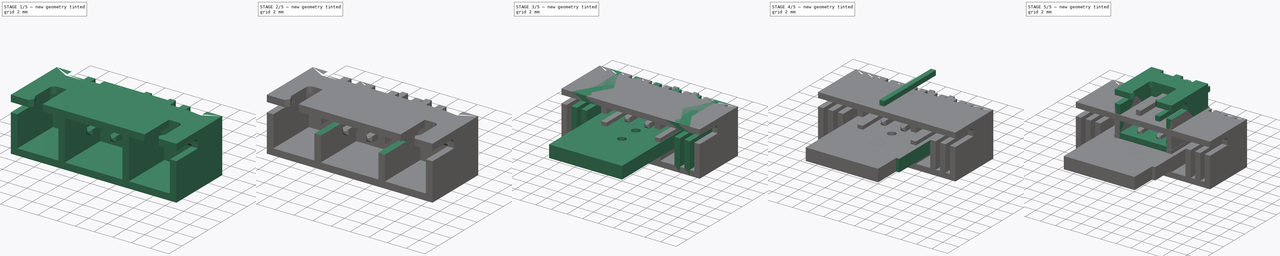
[diagram: build sequence overview — one tinted view per stage of 5, left to right]
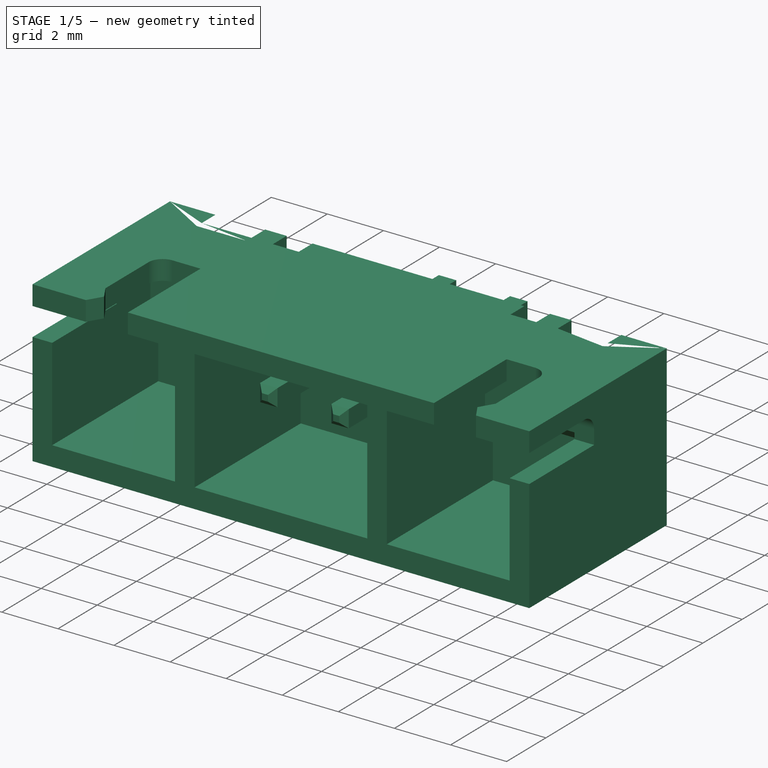
[diagram: stage 1 of 5 — iso view after this stage's code; geometry added in this stage tinted green]
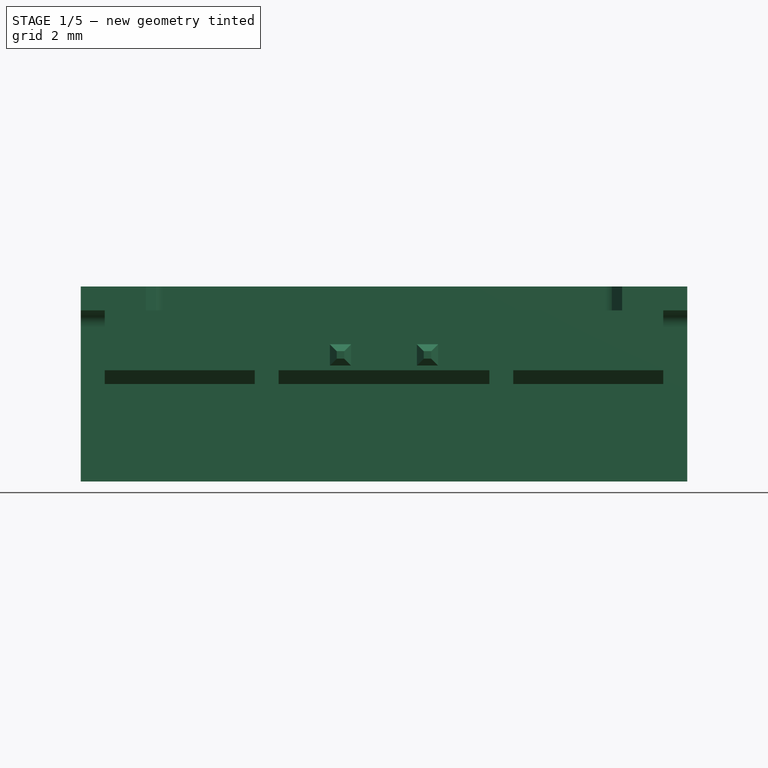
[diagram: stage 1 of 5 — front view after this stage's code; geometry added in this stage tinted green]
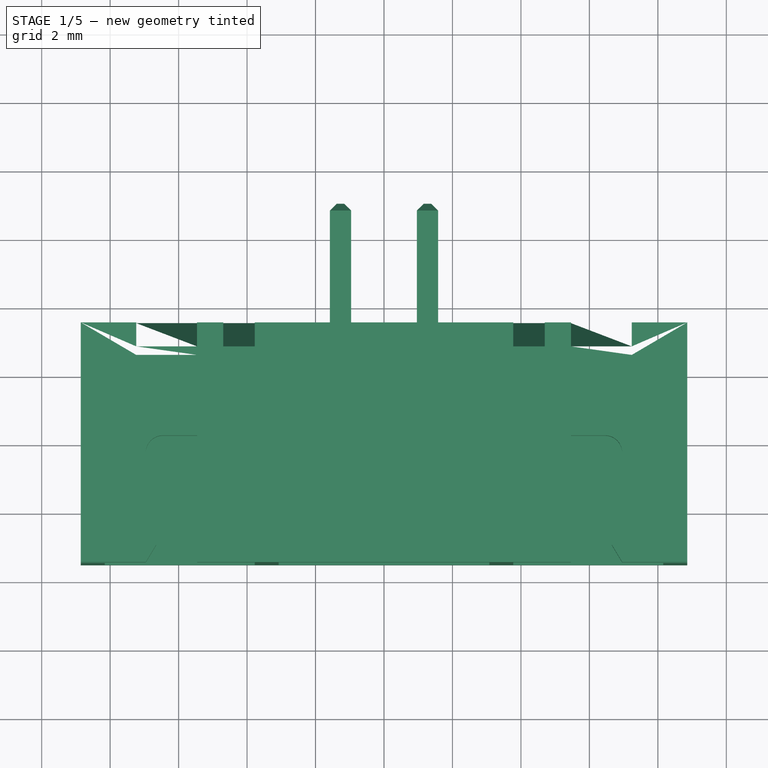
[diagram: stage 1 of 5 — top view after this stage's code; geometry added in this stage tinted green]
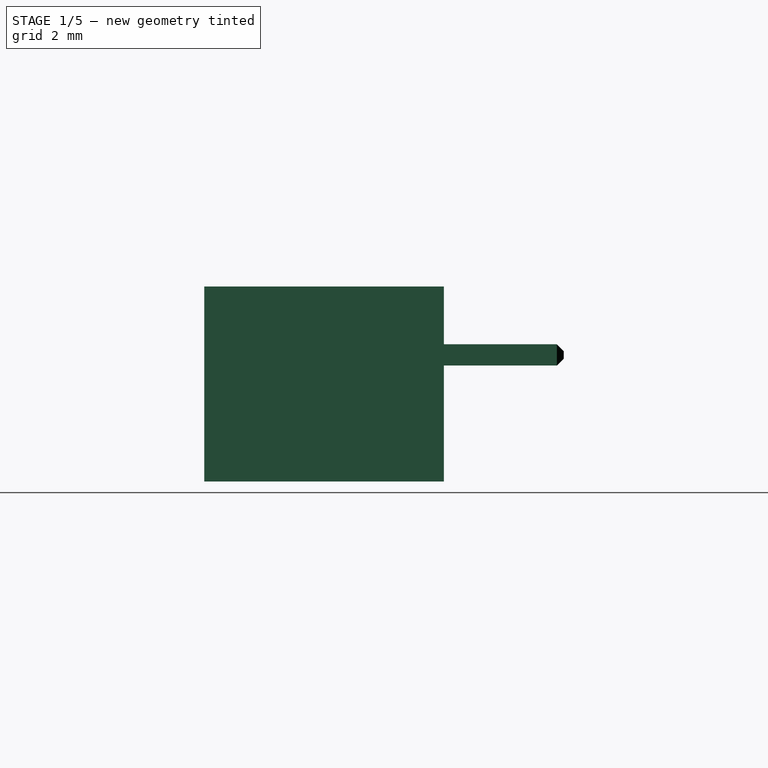
[diagram: stage 1 of 5 — right view after this stage's code; geometry added in this stage tinted green]
FCSTD DOCUMENT  (FreeCAD 0.18R16093 (Git))
Label: izokee-2pin-socket
License: CreativeCommons Attribution
LicenseURL: http://creativecommons.org/licenses/by/4.0/
objects: Part::FeaturePython×17, Sketcher::SketchObject×15, App::DocumentObjectGroup×11, PartDesign::Pad×8, PartDesign::ShapeBinder×8, Part::Feature×8, PartDesign::Pocket×7, Part::MultiFuse×7, PartDesign::Body×5, PartDesign::Plane×2, PartDesign::Thickness×1, Part::Compound×1, Spreadsheet::Sheet×1, Part::Cut×1, Part::Box×1, Part::Chamfer×1, App::Part×1
note: 97 computed .brp shape members not serialized (recipe doc carries the construction recipe); baked Part::Feature solids carry a one-line shape summary decoded from their .brp

FEATURE [App::DocumentObjectGroup] Socket_izokee_1x02_P2_54mm_Vertical_fp
  Group = -> [FCrtYd_lines,FFab_lines,Filk_lines,TopPads,BotPads,THPs,newPCB]
FEATURE [Part::Feature] Shape001  label="Socket_izokee_1x02_P2_54mm_Vertical"
  shape: bbox 5.752 x 7.502 x 10.3 mm, 62 faces, 3 solids (baked)
FEATURE [App::DocumentObjectGroup] Group002  label="2-Pin"
  Group = -> [Body,Body001,Array]
FEATURE [Spreadsheet::Sheet] Spreadsheet  label="Measurements"
  cells = A1=PinCount; B1(PinCount)=2; D1=valid: 2 to 6 (2 pin has different top cutout); D2==(BodyOuterWidth - 2 * TopCutoutEdgeDistance) / 2; A3=WallWidth; B3(WallWidth)==0.7mm; A4=PinLength; B4(PinLength)==9.5mm; A5=BodyOuterHeight; B5(BodyOuterHeight)==5.7mm; A6=BodyOuterDepth; B6(BodyOuterDepth)==7mm; A7=BackSeparatorWidth; B7(BackSeparatorWidth)==0.765mm; D7==BackSeparatorWidth + BackWedgeInnerWidth; A8=BackWedgeInnerWidth; B8(BackWedgeInnerWidth)==1.775mm; A9=SideCutoutDepth; B9(SideCutoutDepth)==3.3mm; A10=SideCutoutHeight; B10(SideCutoutHeight)==1mm; A11=PinChamferLength; B11(PinChamferLength)==0.55mm; A12=BackWedgeLowerDepth; B12(BackWedgeLowerDepth)==0.95mm; A13=BackWedgeUpperDepth; B13(BackWedgeUpperDepth)==0.7mm; A14=PinWidth; B14(PinWidth)==0.62mm; A15=TopCutoutWidth; B15(TopCutoutWidth)==PinCount > 2 ? 1.5mm : TopCutoutWidth2Pin; C15(TopCutoutWidth2Pin)==(BodyOuterWidth - 2 * TopCutoutEdgeDistance) / 2; D15=helper value for 2 pin cutout. do not change.; A16=TopCutoutDepth; B16(TopCutoutDepth)==3.7mm; A17=TopCutoutLockDepth; B17(TopCutoutLockDepth)==1mm; A18=TopCutoutLockWidth; B18(TopCutoutLockWidth)==0.3mm; D18=1.2; A19=BodyOuterWidth; B19(BodyOuterWidth)==2 * BackWedgeEdgeDistance + PinCount * BackWedgeInnerWidth + (PinCount - 1) * BackSeparatorWidth; D19==BodyOuterWidth - 2 * (TopCutoutEdgeDistance + TopCutoutWidth); A20=InnerDepthTop; B20(InnerDepthTop)==5mm; A21=InnerDepthBottom; B21(InnerDepthBottom)==5.4mm; A22=TopCutoutEdgeDistance; B22(TopCutoutEdgeDistance)==1.9mm; A23=BackWallStrengthenerHeight; B23(BackWallStrengthenerHeight)==(BodyOuterHeight - 2 * WallWidth) / 2; A24=BackWedgeEdgeDistance; B24(BackWedgeEdgeDistance)==1.62mm; A25=BackWedgePinAreaHeight; B25(BackWedgePinAreaHeight)==1.5mm; A26=BackWedgeUpperDistance; B26(BackWedgeUpperDistance)==1.25mm; A27=PinOffsetFromFrontPlane; B27(PinOffsetFromFrontPlane)==1mm
FEATURE [Sketcher::SketchObject] Sketch011  label="CasingTopViewSketch"
  MapMode = 5
  Support = -> [XY_Plane002]
  expr: Constraints[9] = Measurements.BodyOuterDepth
  expr: Constraints.BodyOuterWidth = Measurements.BodyOuterWidth
  sketch-geometry (4):
    g0: LineSegment StartX=-3.7775 StartY=-3.5 StartZ=0 EndX=3.7775 EndY=-3.5 EndZ=0
    g1: LineSegment StartX=3.7775 StartY=-3.5 StartZ=0 EndX=3.7775 EndY=3.5 EndZ=0
    g2: LineSegment StartX=3.7775 StartY=3.5 StartZ=0 EndX=-3.7775 EndY=3.5 EndZ=0
    g3: LineSegment StartX=-3.7775 StartY=3.5 StartZ=0 EndX=-3.7775 EndY=-3.5 EndZ=0
  constraints (11):
    c: Coincident(g0,g1)
    c: Coincident(g1,g2)
    c: Coincident(g2,g3)
    c: Coincident(g3,g0)
    c: Horizontal(g0)
    c: Horizontal(g2)
    c: Vertical(g1)
    c: Vertical(g3)
    c: Distance(g2) = 7.555  'BodyOuterWidth'
    c: DistanceY(g3,g3) = 7
    c: Symmetric(g0,g1,g-1)
FEATURE [PartDesign::Pad] Pad007  label="CasingPad"
  Length = 5.7
  Length2 = 100
  Midplane = true
  Profile = -> Sketch011
  Refine = true
  Type = 0
  expr: Length = Measurements.BodyOuterHeight
FEATURE [PartDesign::ShapeBinder] ShapeBinder002  label="CasingFrontFace"
  Support = -> [Pad007]
  TraceSupport = false
FEATURE [Sketcher::SketchObject] Sketch015  label="FrontCutoutSketch"
  ExternalGeometry = -> [ShapeBinder002]
  MapMode = 5
  Placement = pos=(0,-3.5,0) rot=(1,0,0;1.5708rad)
  Support = -> [ShapeBinder002]
  expr: Constraints[9] = Measurements.WallWidth
  expr: Constraints[8] = Measurements.WallWidth
  sketch-geometry (4):
    g0: LineSegment StartX=-3.0775 StartY=2.15 StartZ=0 EndX=3.0775 EndY=2.15 EndZ=0
    g1: LineSegment StartX=3.0775 StartY=2.15 StartZ=0 EndX=3.0775 EndY=-2.15 EndZ=0
    g2: LineSegment StartX=3.0775 StartY=-2.15 StartZ=0 EndX=-3.0775 EndY=-2.15 EndZ=0
    g3: LineSegment StartX=-3.0775 StartY=-2.15 StartZ=0 EndX=-3.0775 EndY=2.15 EndZ=0
  constraints (11):
    c: Coincident(g0,g1)
    c: Coincident(g1,g2)
    c: Coincident(g2,g3)
    c: Coincident(g3,g0)
    c: Horizontal(g0)
    c: Horizontal(g2)
    c: Vertical(g1)
    c: Vertical(g3)
    c: DistanceX(g-3,g0) = 0.7
    c: DistanceY(g0,g-3) = 0.7
    c: Symmetric(g0,g1,g-1)
FEATURE [PartDesign::Pocket] Pocket006  label="FrontCutout"
  BaseFeature = -> Pad007
  Length = 5.4
  Length2 = 100
  Profile = -> Sketch015
  Refine = true
  Type = 0
  expr: Length = Measurements.InnerDepthBottom
FEATURE [PartDesign::Body] Body002  label="Casing3pin"
  Group = -> [Sketch011,Pad007,ShapeBinder002,Pocket006,ShapeBinder003,Sketch015,MirroredSketch,Pocket007,MirroredSketch001,Pocket008,ShapeBinder004,Sketch016,Pocket009,ShapeBinder005,Sketch017,Pad008]
  Origin = -> Origin002
  Tip = -> Pad008
FEATURE [PartDesign::Body] Body003  label="BackWedgeCutout"
  Origin = -> Origin004
FEATURE [PartDesign::ShapeBinder] CopyShapeBinder003
  Placement = pos=(0,0,2.85) rot=(0,0,1;0rad)
  TraceSupport = false
FEATURE [PartDesign::Plane] DatumPlane001
  Length = 31.2
  MapMode = 5
  Placement = pos=(0,0,2.85) rot=(0,0,1;0rad)
  ResizeMode = 0
  Support = -> [CopyShapeBinder003]
  Width = 31.2
FEATURE [Sketcher::SketchObject] Sketch018
  MapMode = 5
  Placement = pos=(0,0,2.85) rot=(0,0,1;0rad)
  Support = -> [DatumPlane001]
  expr: Constraints[21] = Measurements.BackWedgeEdgeDistance
  expr: Constraints[20] = Measurements.BackWedgeInnerWidth
  expr: Constraints[10] = Measurements.BodyOuterDepth
  expr: Constraints[22] = max(Measurements.BackWedgeLowerDepth; Measurements.BackWedgeUpperDepth)
  expr: Constraints[9] = Measurements.BodyOuterWidth
  sketch-geometry (8):
    g0: LineSegment [constr] StartX=-3.7775 StartY=3.5 StartZ=0 EndX=3.7775 EndY=3.5 EndZ=0
    g1: LineSegment [constr] StartX=3.7775 StartY=3.5 StartZ=0 EndX=3.7775 EndY=-3.5 EndZ=0
    g2: LineSegment [constr] StartX=3.7775 StartY=-3.5 StartZ=0 EndX=-3.7775 EndY=-3.5 EndZ=0
    g3: LineSegment [constr] StartX=-3.7775 StartY=-3.5 StartZ=0 EndX=-3.7775 EndY=3.5 EndZ=0
    g4: LineSegment StartX=-2.1575 StartY=3.5 StartZ=0 EndX=-0.3825 EndY=3.5 EndZ=0
    g5: LineSegment StartX=-0.3825 StartY=3.5 StartZ=0 EndX=-0.3825 EndY=2.55 EndZ=0
    g6: LineSegment StartX=-0.3825 StartY=2.55 StartZ=0 EndX=-2.1575 EndY=2.55 EndZ=0
    g7: LineSegment StartX=-2.1575 StartY=2.55 StartZ=0 EndX=-2.1575 EndY=3.5 EndZ=0
  constraints (23):
    c: Coincident(g0,g1)
    c: Coincident(g1,g2)
    c: Coincident(g2,g3)
    c: Coincident(g3,g0)
    c: Horizontal(g0)
    c: Horizontal(g2)
    c: Vertical(g1)
    c: Vertical(g3)
    c: Symmetric(g0,g2,g-1)
    c: DistanceX(g0,g0) = 7.555
    c: DistanceY(g3,g3) = 7
    c: Coincident(g4,g5)
    c: Coincident(g5,g6)
    c: Coincident(g6,g7)
    c: Coincident(g7,g4)
    c: Horizontal(g4)
    c: Horizontal(g6)
    c: Vertical(g5)
    c: Vertical(g7)
    c: PointOnObject(g4,g0)
    c: DistanceX(g4,g4) = 1.775
    c: DistanceX(g0,g4) = 1.62
    c: DistanceY(g7,g7) = 0.95
FEATURE [PartDesign::Pad] Pad009  label="BackWedgeLeftMostCutoutPad"
  Length = 5.7
  Length2 = 100
  Placement = pos=(0,0,2.85) rot=(0,0,1;0rad)
  Profile = -> Sketch018
  Reversed = true
  Type = 0
  expr: Length = Measurements.BodyOuterHeight
FEATURE [Part::FeaturePython] Array001  label="BackWedgeCutouts"  # Draft array (typed FeaturePython)
  Angle = 360
  ArrayType = 0
  Axis = (0,0,1)
  Base = -> Pad009
  Center = (0,0,0)
  Fuse = false
  IntervalAxis = (0,0,0)
  IntervalX = (2.54,0,0)
  IntervalY = (0,1,0)
  IntervalZ = (0,0,1)
  NumberPolar = 1
  NumberX = 2
  NumberY = 1
  NumberZ = 1
  expr: NumberX = Measurements.PinCount
  expr: IntervalX.x = Measurements.BackWedgeInnerWidth + Measurements.BackSeparatorWidth
FEATURE [PartDesign::Body] Body004  label="BackWedge"
  Group = -> [ShapeBinder006,Sketch019,Pad010]
  Origin = -> Origin005
  Tip = -> Pad010
FEATURE [Part::Box] Box  label="LeftMostPin"
  AttacherType = Attacher::AttachEngine3D
  Height = 0.62
  Length = 0.62
  Placement = pos=(-1.58,-2.5,0.54) rot=(0,0,1;0rad)
  Width = 9.5
  expr: Placement.Base.y = -Measurements.BodyOuterDepth / 2 + Measurements.PinOffsetFromFrontPlane
  expr: Placement.Base.x = -Measurements.BodyOuterWidth / 2 + Measurements.BackWedgeEdgeDistance + Measurements.BackWedgeInnerWidth / 2 - Measurements.PinWidth / 2
  expr: Placement.Base.z = +Measurements.BodyOuterHeight / 2 - Measurements.BackWedgeUpperDistance - Measurements.BackWedgePinAreaHeight / 2 - Measurements.PinWidth / 2
  expr: Height = Measurements.PinWidth
  expr: Width = Measurements.PinLength
  expr: Length = Measurements.PinWidth
FEATURE [Part::Chamfer] Chamfer  label="PinChamfer"
  Base = -> Box
  Edges = 8 edges r=0.2: [Edge1,Edge3,Edge5,Edge7,Edge9,Edge10,Edge11,Edge12]
FEATURE [Part::FeaturePython] Array002  label="MetalPinsArray"  # Draft array (typed FeaturePython)
  Angle = 360
  ArrayType = 0
  Axis = (0,0,1)
  Base = -> Chamfer
  Center = (0,0,0)
  Fuse = false
  IntervalAxis = (0,0,0)
  IntervalX = (2.54,0,0)
  IntervalY = (0,1,0)
  IntervalZ = (0,0,1)
  NumberPolar = 1
  NumberX = 2
  NumberY = 1
  NumberZ = 1
  expr: IntervalX.x = Measurements.BackWedgeInnerWidth + Measurements.BackSeparatorWidth
  expr: NumberX = Measurements.PinCount
FEATURE [Part::Feature] BackWedgePad_fd_cp002  label="BackWedgePad_sp002"
  shape: bbox 17.72 x 7 x 5.7 mm, 115 faces (baked)
FEATURE [Part::MultiFuse] BackWedgePad_sp002_mp_cp  label="Socket_izokee_1x06_P2_54mm_Vertical_sp_fd"
  Shapes = -> [BackWedgePad_fd_cp002,Array002]
FEATURE [Part::Feature] Shape006  label="Socket_izokee_1x06_P2_54mm_Vertical_sp"
  shape: bbox 17.72 x 10.5 x 5.7 mm, 223 faces (baked)
FEATURE [App::DocumentObjectGroup] Group008  label="6pin"
  Group = -> [BackWedgePad_mp_cp003,BackWedgePad_sp002_mp_cp,Shape006]
FEATURE [App::DocumentObjectGroup] Group001  label="KiCAD Helpers"
  Group = -> [Group004,Group005,Group006,Group007,Group008]
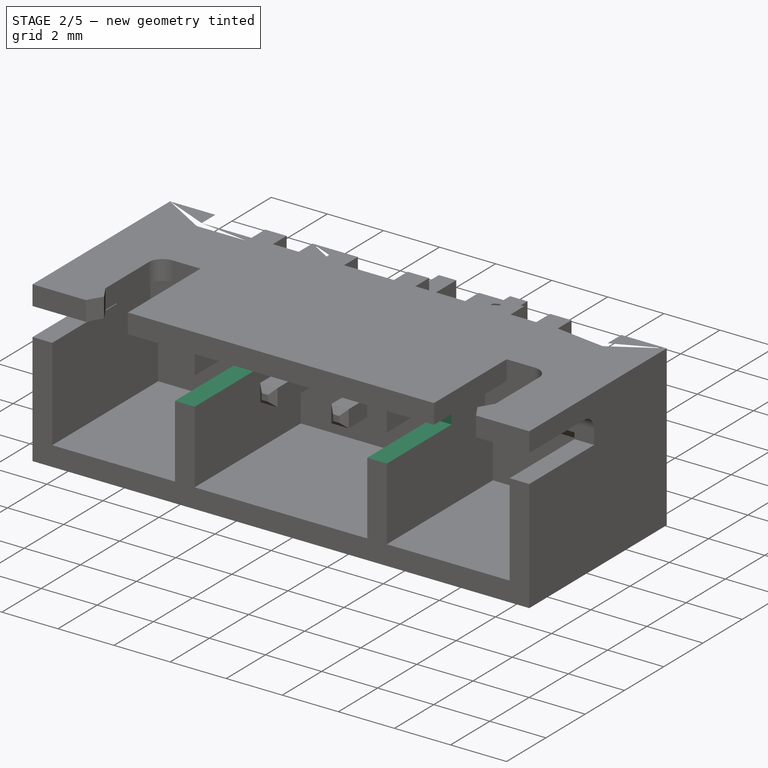
[diagram: stage 2 of 5 — iso view after this stage's code; geometry added in this stage tinted green]
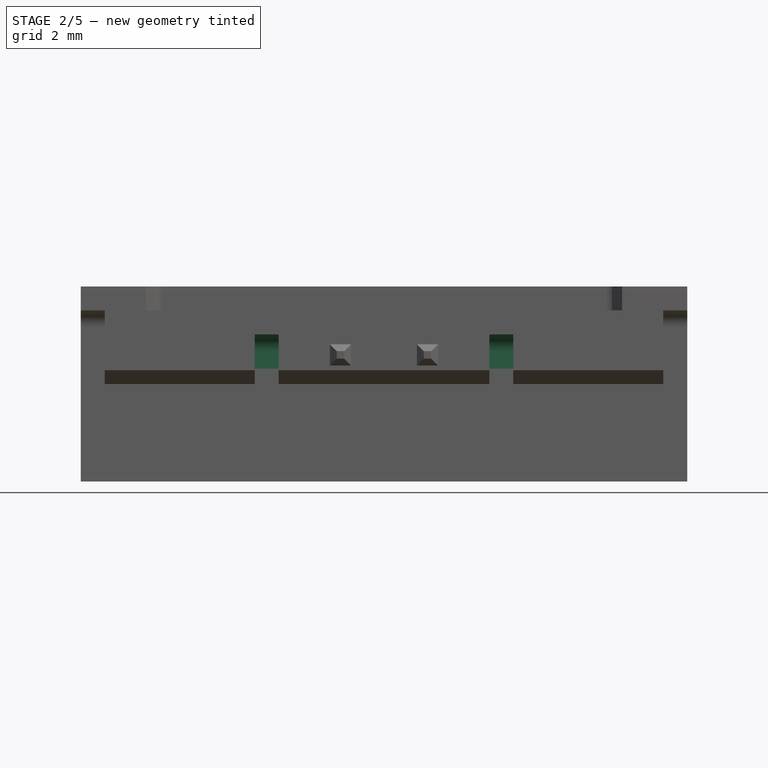
[diagram: stage 2 of 5 — front view after this stage's code; geometry added in this stage tinted green]
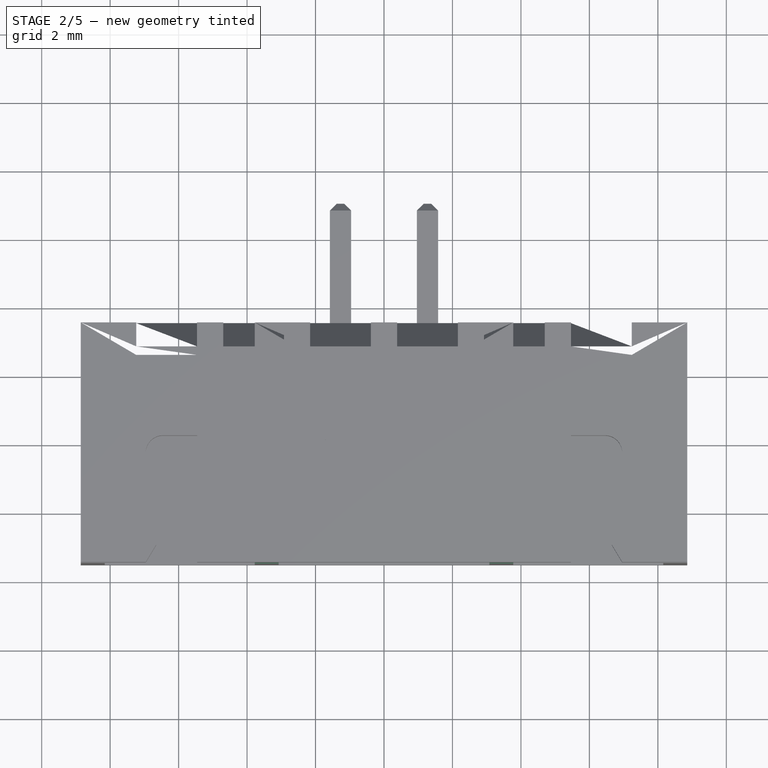
[diagram: stage 2 of 5 — top view after this stage's code; geometry added in this stage tinted green]
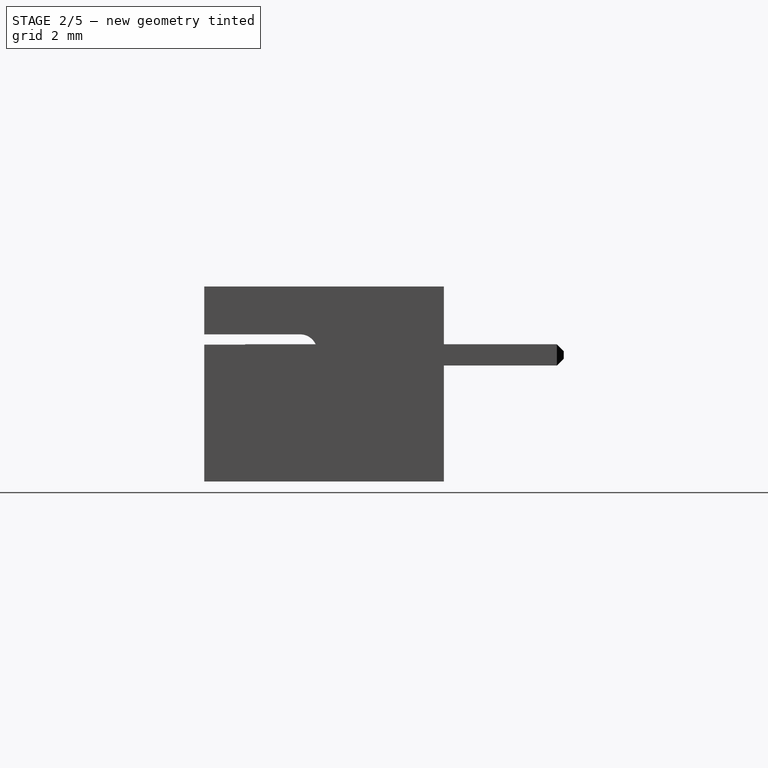
[diagram: stage 2 of 5 — right view after this stage's code; geometry added in this stage tinted green]
FEATURE [PartDesign::ShapeBinder] ShapeBinder003  label="CasingTopFace"
  Placement = pos=(0,0,2.85) rot=(0,0,1;0rad)
  Support = -> [Pocket006]
  TraceSupport = false
FEATURE [Sketcher::SketchObject] MirroredSketch  label="TopCutoutRightSketch"
  ExternalGeometry = -> [ShapeBinder003]
  MapMode = 5
  Placement = pos=(0,0,2.85) rot=(0,0,1;0rad)
  Support = -> [ShapeBinder003]
  expr: Constraints[21] = Measurements.TopCutoutLockWidth
  expr: Constraints[20] = Measurements.TopCutoutLockDepth
  expr: Constraints[17] = Measurements.TopCutoutLockDepth / 2
  expr: Constraints[9] = Measurements.TopCutoutWidth
  expr: Constraints[8] = Measurements.TopCutoutDepth
  expr: Constraints[7] = Measurements.TopCutoutEdgeDistance
  sketch-geometry (7):
    g0: LineSegment StartX=1.3775 StartY=0.2 StartZ=0 EndX=0 EndY=0.2 EndZ=0
    g1: LineSegment StartX=0 StartY=0.2 StartZ=0 EndX=0 EndY=-3.5 EndZ=0
    g2: LineSegment StartX=0 StartY=-3.5 StartZ=0 EndX=1.8775 EndY=-3.5 EndZ=0
    g3: LineSegment StartX=1.8775 StartY=-2.5 StartZ=0 EndX=1.8775 EndY=-0.3 EndZ=0
    g4: ArcOfCircle CenterX=1.3775 CenterY=-0.3 CenterZ=0 NormalX=0 NormalY=0 NormalZ=1 AngleXU=0 Radius=0.5 StartAngle=0 EndAngle=1.5708
    g5: LineSegment StartX=1.8775 StartY=-2.5 StartZ=0 EndX=1.5775 EndY=-3 EndZ=0
    g6: LineSegment StartX=1.5775 StartY=-3 StartZ=0 EndX=1.8775 EndY=-3.5 EndZ=0
  constraints (22):
    c: Coincident(g0,g1)
    c: Coincident(g1,g2)
    c: Horizontal(g2)
    c: Vertical(g1)
    c: Coincident(g4,g3)
    c: Radius(g4) = 0.5
    c: Vertical(g3)
    c: DistanceX(g2,g-3) = 1.9
    c: DistanceY(g1,g0) = 3.7
    c: DistanceX(g2,g2) = 1.8775
    c: Horizontal(g2,g-3)
    c: Horizontal(g3,g4)
    c: Coincident(g0,g4)
    c: Horizontal(g0)
    c: Vertical(g0,g4)
    c: Coincident(g5,g6)
    c: Coincident(g6,g2)
    c: DistanceY(g2,g5) = 0.5
    c: Coincident(g3,g5)
    c: Vertical(g3,g2)
    c: DistanceY(g2,g3) = 1
    c: DistanceX(g5,g2) = 0.3
FEATURE [PartDesign::Pocket] Pocket007  label="TopCutoutRight"
  BaseFeature = -> Pocket006
  Length = 5
  Length2 = 100
  Profile = -> MirroredSketch
  Refine = true
  Type = 2
FEATURE [Sketcher::SketchObject] MirroredSketch001  label="TopCutoutLeftSketch"
  ExternalGeometry = -> [ShapeBinder003]
  MapMode = 5
  Placement = pos=(0,0,2.85) rot=(0,0,1;0rad)
  Support = -> [ShapeBinder003]
  expr: Constraints[21] = Measurements.TopCutoutLockWidth
  expr: Constraints[15] = Measurements.TopCutoutLockDepth
  expr: Constraints[16] = Measurements.TopCutoutLockDepth / 2
  expr: Constraints[14] = Measurements.TopCutoutDepth
  expr: Constraints[13] = Measurements.TopCutoutWidth
  expr: Constraints[12] = Measurements.TopCutoutEdgeDistance
  sketch-geometry (7):
    g0: LineSegment StartX=-1.3775 StartY=0.2 StartZ=0 EndX=0 EndY=0.2 EndZ=0
    g1: LineSegment StartX=0 StartY=0.2 StartZ=0 EndX=0 EndY=-3.5 EndZ=0
    g2: LineSegment StartX=0 StartY=-3.5 StartZ=0 EndX=-1.8775 EndY=-3.5 EndZ=0
    g3: LineSegment StartX=-1.8775 StartY=-2.5 StartZ=0 EndX=-1.8775 EndY=-0.3 EndZ=0
    g4: ArcOfCircle CenterX=-1.3775 CenterY=-0.3 CenterZ=0 NormalX=0 NormalY=0 NormalZ=1 AngleXU=0 Radius=0.5 StartAngle=1.5708 EndAngle=3.14159
    g5: LineSegment StartX=-1.8775 StartY=-2.5 StartZ=0 EndX=-1.5775 EndY=-3 EndZ=0
    g6: LineSegment StartX=-1.5775 StartY=-3 StartZ=0 EndX=-1.8775 EndY=-3.5 EndZ=0
  constraints (22):
    c: Coincident(g0,g1)
    c: Coincident(g1,g2)
    c: Horizontal(g2)
    c: Vertical(g1)
    c: Coincident(g4,g3)
    c: Radius(g4) = 0.5
    c: Vertical(g3)
    c: Coincident(g0,g4)
    c: Horizontal(g0)
    c: Coincident(g5,g6)
    c: Coincident(g6,g2)
    c: Coincident(g3,g5)
    c: DistanceX(g-3,g2) = 1.9
    c: DistanceX(g2,g1) = 1.8775
    c: DistanceY(g1,g0) = 3.7
    c: DistanceY(g2,g3) = 1
    c: DistanceY(g2,g5) = 0.5
    c: Horizontal(g3,g4)
    c: Vertical(g0,g4)
    c: DistanceY(g-3,g2) = 0
    c: Vertical(g3,g2)
    c: DistanceX(g2,g5) = 0.3
FEATURE [PartDesign::Pocket] Pocket008  label="TopCutoutLeft"
  BaseFeature = -> Pocket007
  Length = 5
  Length2 = 100
  Profile = -> MirroredSketch001
  Refine = true
  Type = 2
FEATURE [PartDesign::ShapeBinder] ShapeBinder004  label="CasingLeftFace"
  Support = -> [Pocket008]
  TraceSupport = false
FEATURE [Sketcher::SketchObject] Sketch016  label="SideCutoutSketch"
  ExternalGeometry = -> [Pocket008]
  MapMode = 5
  Placement = pos=(-3.7775,0,0) rot=(0.57735,-0.57735,-0.57735;2.0944rad)
  Support = -> [ShapeBinder004]
  expr: Constraints[13] = Measurements.SideCutoutDepth
  expr: Constraints[9] = Measurements.SideCutoutHeight
  expr: Constraints[8] = Measurements.WallWidth
  sketch-geometry (5):
    g0: LineSegment StartX=3.5 StartY=1.45 StartZ=0 EndX=0.7 EndY=1.45 EndZ=0
    g1: LineSegment StartX=0.2 StartY=0.95 StartZ=0 EndX=0.2 EndY=0.45 EndZ=0
    g2: LineSegment StartX=0.2 StartY=0.45 StartZ=0 EndX=3.5 EndY=0.45 EndZ=0
    g3: LineSegment StartX=3.5 StartY=0.45 StartZ=0 EndX=3.5 EndY=1.45 EndZ=0
    g4: ArcOfCircle CenterX=0.7 CenterY=0.95 CenterZ=0 NormalX=0 NormalY=0 NormalZ=1 AngleXU=0 Radius=0.5 StartAngle=1.5708 EndAngle=3.14159
  constraints (14):
    c: Coincident(g1,g2)
    c: Coincident(g2,g3)
    c: Coincident(g3,g0)
    c: Horizontal(g0)
    c: Horizontal(g2)
    c: Vertical(g1)
    c: Vertical(g3)
    c: PointOnObject(g0,g-3)
    c: DistanceY(g0,g-4) = 0.7
    c: DistanceY(g2,g0) = 1
    c: Tangent(g0,g4) = -1.5708
    c: Tangent(g1,g4) = -1.5708
    c: Radius(g4) = 0.5
    c: DistanceX(g2,g2) = 3.3
FEATURE [PartDesign::Pocket] Pocket009  label="SideCutout"
  BaseFeature = -> Pocket008
  Length = 5
  Length2 = 100
  Profile = -> Sketch016
  Refine = true
  Type = 1
FEATURE [PartDesign::ShapeBinder] ShapeBinder005  label="InnerWallLeft"
  Support = -> [Pocket009]
  TraceSupport = false
FEATURE [Sketcher::SketchObject] Sketch017  label="BackWallStrengthenerWedgeSketch"
  ExternalGeometry = -> [Pocket009]
  MapMode = 5
  Placement = pos=(-3.0775,0,0) rot=(0.57735,0.57735,0.57735;2.0944rad)
  Support = -> [ShapeBinder005]
  expr: Constraints[9] = Measurements.InnerDepthBottom - Measurements.InnerDepthTop
  expr: Constraints[8] = Measurements.BackWallStrengthenerHeight
  sketch-geometry (4):
    g0: LineSegment StartX=1.5 StartY=2.15 StartZ=0 EndX=1.5 EndY=0.4 EndZ=0
    g1: LineSegment StartX=1.5 StartY=0.4 StartZ=0 EndX=1.9 EndY=-7e-16 EndZ=0
    g2: LineSegment StartX=1.9 StartY=-7e-16 StartZ=0 EndX=1.9 EndY=2.15 EndZ=0
    g3: LineSegment StartX=1.9 StartY=2.15 StartZ=0 EndX=1.5 EndY=2.15 EndZ=0
  constraints (11):
    c: PointOnObject(g0,g-4)
    c: Vertical(g0)
    c: Coincident(g0,g1)
    c: PointOnObject(g1,g-3)
    c: Coincident(g1,g2)
    c: Coincident(g2,g-4)
    c: Coincident(g2,g3)
    c: Coincident(g3,g0)
    c: DistanceY(g2,g2) = 2.15
    c: DistanceX(g3,g3) = 0.4
    c: Angle(g2,g1) = 0.785398
FEATURE [PartDesign::Pad] Pad008  label="BackWallStrengthenerWedge"
  BaseFeature = -> Pocket009
  Length = 10
  Length2 = 100
  Profile = -> Sketch017
  Refine = true
  Type = 2
FEATURE [Part::Cut] Cut  label="CasingMinusBackWedgeCutouts"
  Base = -> Body002
  Tool = -> Array001
FEATURE [PartDesign::ShapeBinder] ShapeBinder006  label="BackWedgeLeftMostInnerFace"
  Placement = pos=(0,0,2.85) rot=(0,0,1;0rad)
  Support = -> [Cut]
  TraceSupport = false
FEATURE [Sketcher::SketchObject] Sketch019  label="BackWedgeSketch"
  ExternalGeometry = -> [ShapeBinder006]
  MapMode = 5
  Placement = pos=(-2.1575,0,2.85) rot=(0.57735,0.57735,0.57735;2.0944rad)
  Support = -> [ShapeBinder006]
  expr: Constraints[15] = Measurements.BackWedgePinAreaHeight
  expr: Constraints[18] = Measurements.BackWedgeLowerDepth
  expr: Constraints[17] = Measurements.BackWedgeUpperDistance
  expr: Constraints[14] = Measurements.BackWedgeUpperDepth
  sketch-geometry (7):
    g0: LineSegment StartX=2.55 StartY=0 StartZ=0 EndX=2.8 EndY=0 EndZ=0
    g1: LineSegment StartX=2.8 StartY=0 StartZ=0 EndX=3.5 EndY=-1.25 EndZ=0
    g2: LineSegment StartX=3.5 StartY=-1.25 StartZ=0 EndX=3.5 EndY=-2.75 EndZ=0
    g3: LineSegment StartX=3.5 StartY=-2.75 StartZ=0 EndX=2.55 EndY=-5.7 EndZ=0
    g4: LineSegment [constr] StartX=3.5 StartY=-5.7 StartZ=0 EndX=2.55 EndY=-5.7 EndZ=0
    g5: LineSegment StartX=2.55 StartY=-5.7 StartZ=0 EndX=2.55 EndY=-5.7 EndZ=0
    g6: LineSegment StartX=2.55 StartY=-5.7 StartZ=0 EndX=2.55 EndY=0 EndZ=0
  constraints (19):
    c: Coincident(g-3,g0)
    c: PointOnObject(g0,g-1)
    c: Coincident(g0,g1)
    c: PointOnObject(g1,g-4)
    c: Coincident(g1,g2)
    c: PointOnObject(g2,g-4)
    c: Coincident(g2,g3)
    c: Coincident(g4,g-4)
    c: Coincident(g4,g-3)
    c: PointOnObject(g3,g4)
    c: Coincident(g3,g5)
    c: Coincident(g5,g4)
    c: Coincident(g5,g6)
    c: Coincident(g6,g0)
    c: DistanceX(g0,g-4) = 0.7
    c: DistanceY(g2,g2) = 1.5
    c: DistanceY(g-4,g-4) = 5.7
    c: DistanceY(g1,g-4) = 1.25
    c: DistanceX(g3,g4) = 0.95
FEATURE [PartDesign::Pad] Pad010  label="BackWedgePad"
  Length = 4.315
  Length2 = 100
  Placement = pos=(0,0,2.85) rot=(0,0,1;0rad)
  Profile = -> Sketch019
  Type = 0
  expr: Length = Measurements.PinCount * Measurements.BackWedgeInnerWidth + (Measurements.PinCount - 1) * Measurements.BackSeparatorWidth
FEATURE [Part::Feature] Shape004  label="Socket_izokee_1x05_P2_54mm_Vertical_sp"
  shape: bbox 15.18 x 10.5 x 5.7 mm, 191 faces (baked)
FEATURE [App::DocumentObjectGroup] Group007  label="5pin"
  Group = -> [BackWedgePad_mp_cp002,MetalPinsArray_mp_cp,Shape004]
FEATURE [Part::MultiFuse] BackWedgePad_mp_cp003  label="Socket_izokee_1x06_P2_54mm_Vertical_fd"
  Shapes = -> [Pad010,Cut]
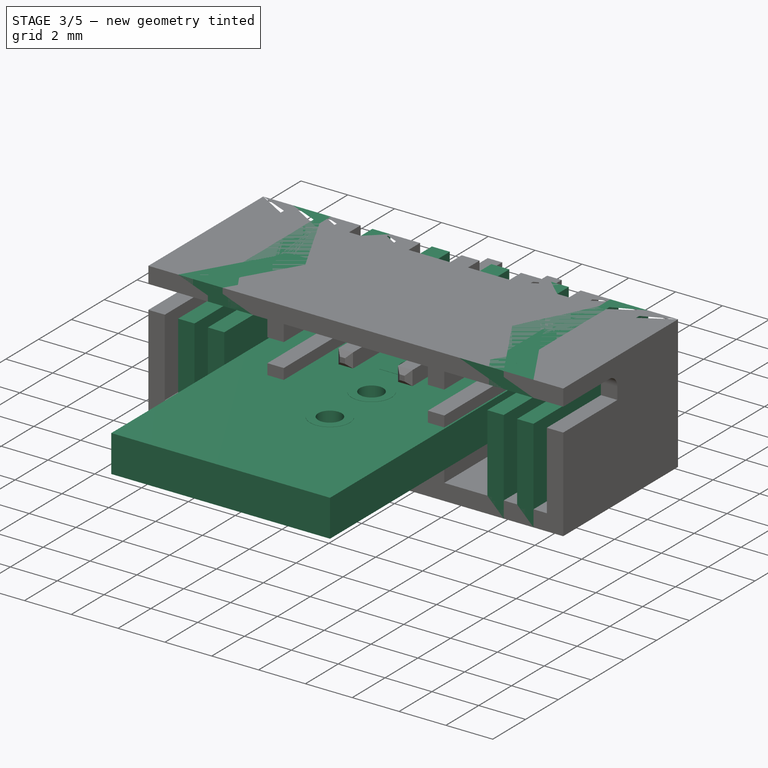
[diagram: stage 3 of 5 — iso view after this stage's code; geometry added in this stage tinted green]
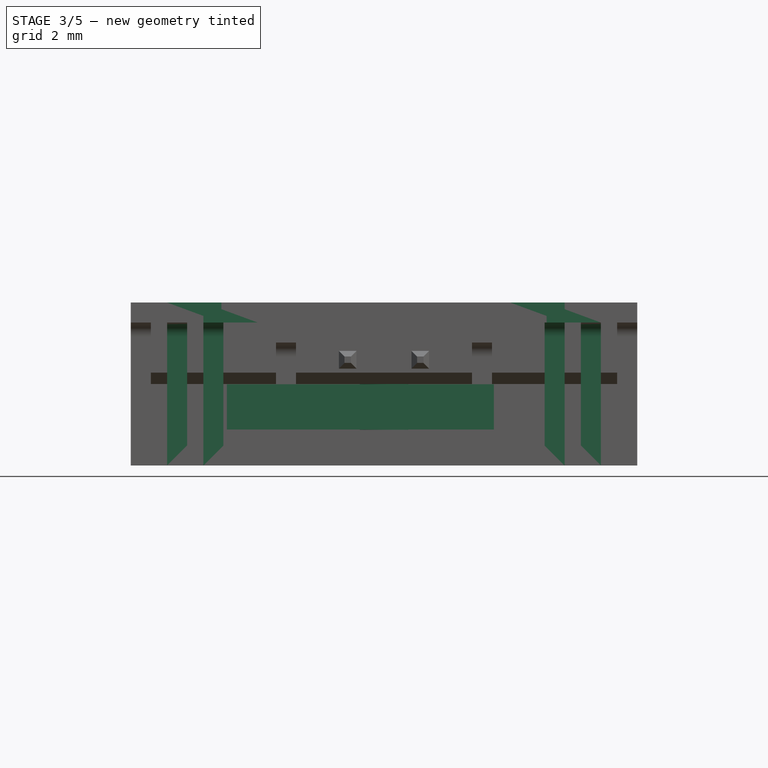
[diagram: stage 3 of 5 — front view after this stage's code; geometry added in this stage tinted green]
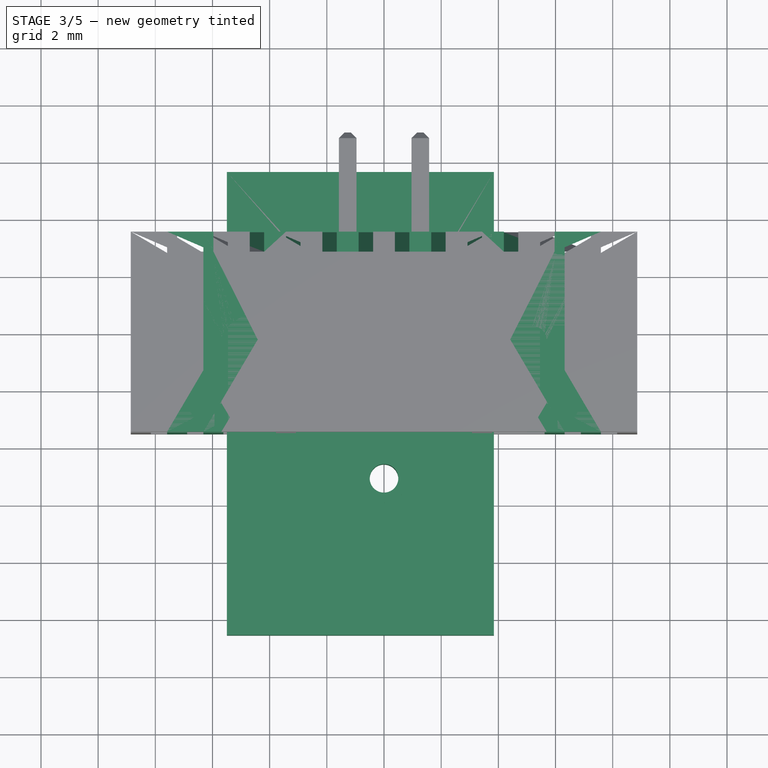
[diagram: stage 3 of 5 — top view after this stage's code; geometry added in this stage tinted green]
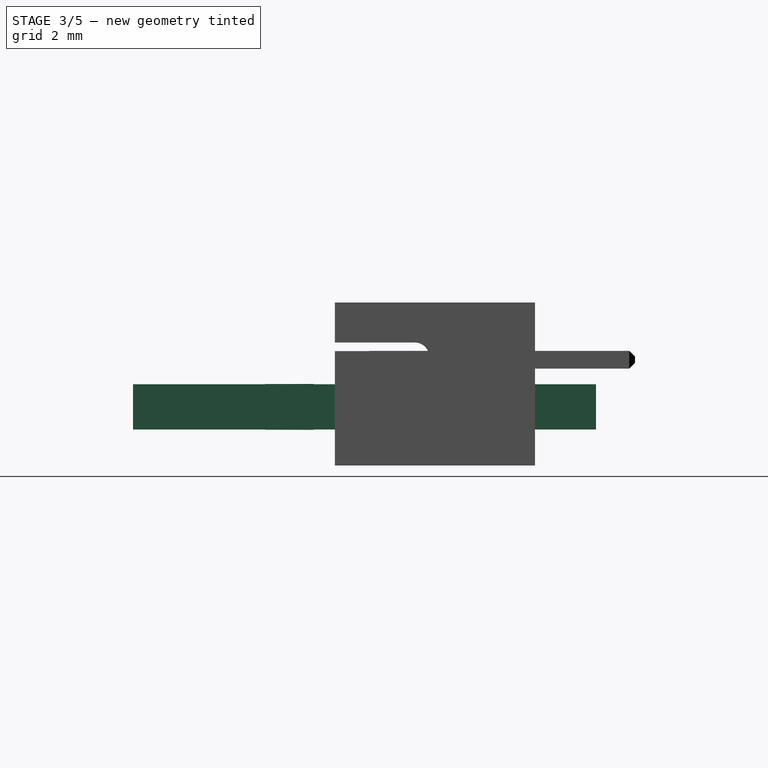
[diagram: stage 3 of 5 — right view after this stage's code; geometry added in this stage tinted green]
FEATURE [Part::Feature] Shape  label="Socket_izokee_1x03_P2_54mm_Vertical_fp_sp"
  shape: bbox 5.7 x 10.1 x 10.5 mm, 127 faces (baked)
FEATURE [Part::FeaturePython] FCrtYd_lines001  label="FCrtYd002"  # a2plus imported part (geometry in sourceFile) (typed FeaturePython)
  fixedPosition = true
FEATURE [Part::FeaturePython] FFab_lines002  label="FFab002"  # a2plus imported part (geometry in sourceFile) (typed FeaturePython)
  fixedPosition = true
FEATURE [Part::FeaturePython] Filk_lines002  label="FrontSilk002"  # a2plus imported part (geometry in sourceFile) (typed FeaturePython)
  fixedPosition = true
FEATURE [Part::FeaturePython] TopPads002  # a2plus imported part (geometry in sourceFile) (typed FeaturePython)
  fixedPosition = true
FEATURE [Part::FeaturePython] BotPads002  # a2plus imported part (geometry in sourceFile) (typed FeaturePython)
  fixedPosition = true
FEATURE [Part::FeaturePython] THPs002  label="PTHs002"  # a2plus imported part (geometry in sourceFile) (typed FeaturePython)
  fixedPosition = true
FEATURE [Part::FeaturePython] newPCB002  label="Pcb002"  # a2plus imported part (geometry in sourceFile) (typed FeaturePython)
  fixedPosition = true
FEATURE [App::DocumentObjectGroup] Socket_izokee_1x03_P2_54mm_Vertical_fp001
  Group = -> [FCrtYd_lines001,FFab_lines002,Filk_lines002,TopPads002,BotPads002,THPs002,newPCB002]
FEATURE [App::DocumentObjectGroup] Group005  label="3pin"
  Group = -> [BackWedgePad_mp_cp,Shape,Socket_izokee_1x03_P2_54mm_Vertical_fp001]
FEATURE [Part::MultiFuse] BackWedgePad_mp_cp001  label="Socket_izokee_1x04_P2_54mm_Vertical_fd"
  Shapes = -> [Pad010,Cut]
FEATURE [Part::Feature] BackWedgePad_fd_cp  label="BackWedgePad_sp"
  shape: bbox 12.64 x 7 x 5.7 mm, 87 faces (baked)
FEATURE [Part::MultiFuse] BackWedgePad_sp_mp_cp  label="Socket_izokee_1x04_P2_54mm_Vertical_sp_fd"
  Shapes = -> [BackWedgePad_fd_cp,Array002]
FEATURE [Part::Feature] Shape002  label="Socket_izokee_1x04_P2_54mm_Vertical_sp_sp"
  shape: bbox 12.64 x 10.5 x 5.7 mm, 159 faces (baked)
FEATURE [App::DocumentObjectGroup] Group006  label="4pin"
  Group = -> [BackWedgePad_mp_cp001,BackWedgePad_sp_mp_cp,Shape002]
FEATURE [Part::MultiFuse] BackWedgePad_mp_cp002  label="Socket_izokee_1x05_P2_54mm_Vertical_fd"
  Shapes = -> [Pad010,Cut]
FEATURE [Part::Feature] BackWedgePad_fd_cp001  label="BackWedgePad_sp001"
  shape: bbox 15.18 x 7 x 5.7 mm, 101 faces (baked)
FEATURE [Part::MultiFuse] MetalPinsArray_mp_cp  label="Socket_izokee_1x05_P2_54mm_Vertical_sp_fd"
  Shapes = -> [Array002,BackWedgePad_fd_cp001]
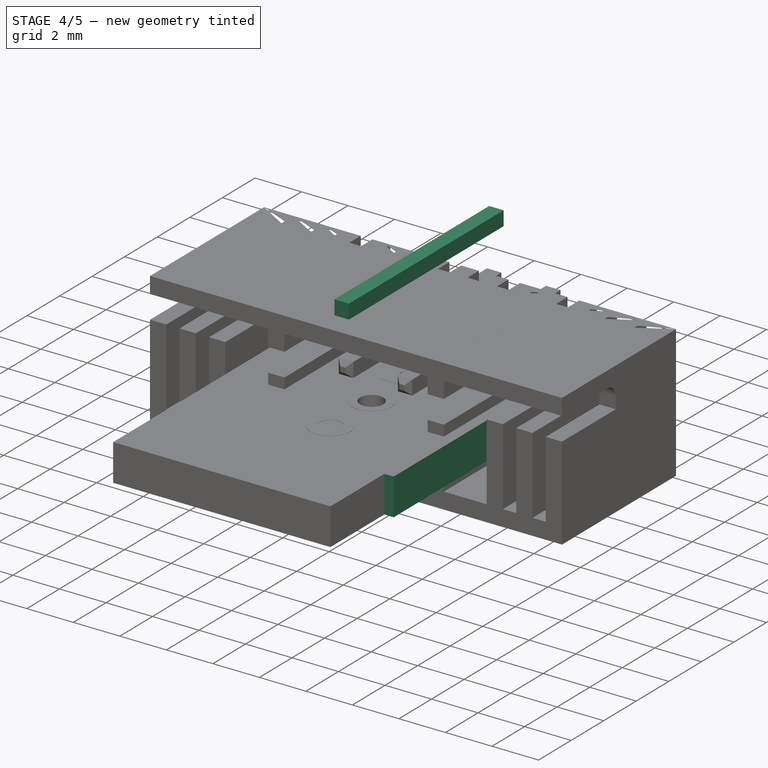
[diagram: stage 4 of 5 — iso view after this stage's code; geometry added in this stage tinted green]
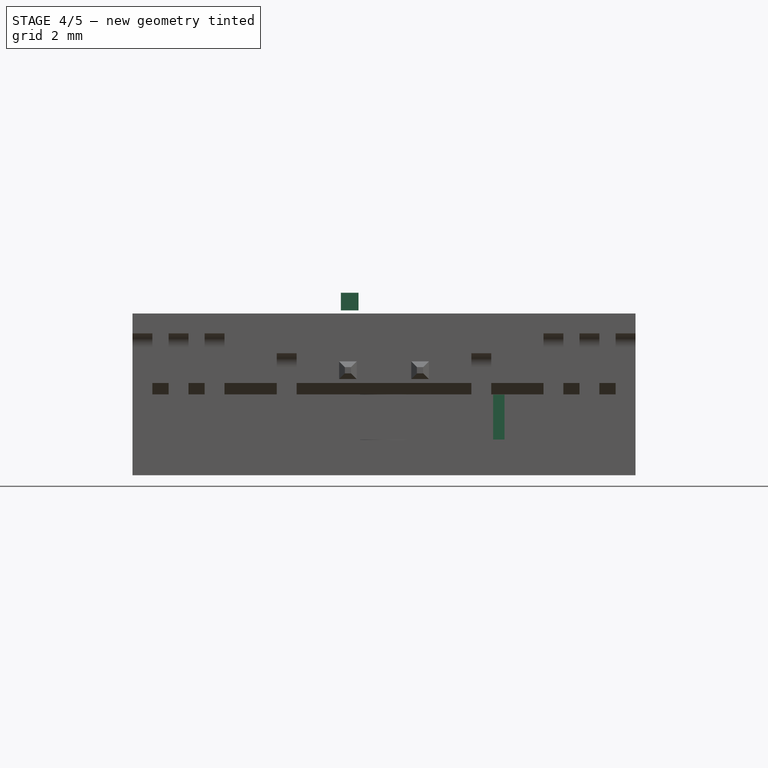
[diagram: stage 4 of 5 — front view after this stage's code; geometry added in this stage tinted green]
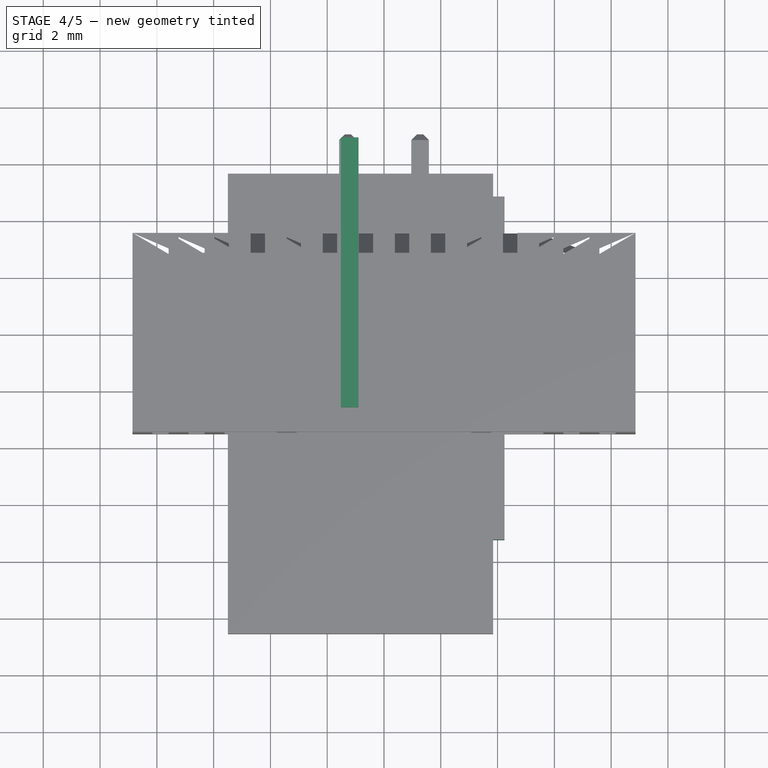
[diagram: stage 4 of 5 — top view after this stage's code; geometry added in this stage tinted green]
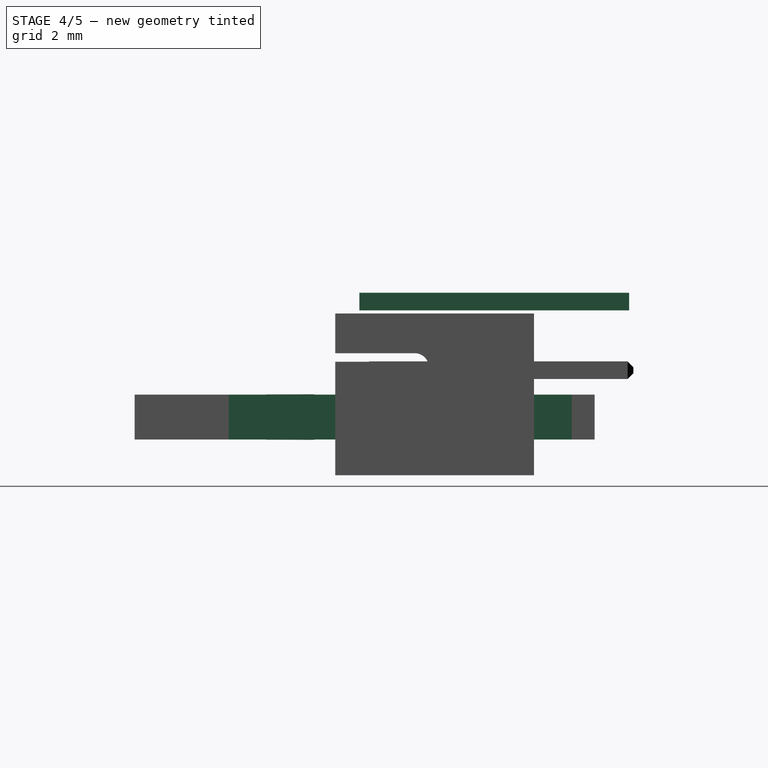
[diagram: stage 4 of 5 — right view after this stage's code; geometry added in this stage tinted green]
FEATURE [Sketcher::SketchObject] Sketch  label="BasicOutline"
  MapMode = 5
  Support = -> [XY_Plane]
  sketch-geometry (4):
    g0: LineSegment StartX=-3.75 StartY=3.45 StartZ=0 EndX=3.75 EndY=3.45 EndZ=0
    g1: LineSegment StartX=3.75 StartY=3.45 StartZ=0 EndX=3.75 EndY=-3.45 EndZ=0
    g2: LineSegment StartX=3.75 StartY=-3.45 StartZ=0 EndX=-3.75 EndY=-3.45 EndZ=0
    g3: LineSegment StartX=-3.75 StartY=-3.45 StartZ=0 EndX=-3.75 EndY=3.45 EndZ=0
  constraints (11):
    c: Coincident(g0,g1)
    c: Coincident(g1,g2)
    c: Coincident(g2,g3)
    c: Coincident(g3,g0)
    c: Horizontal(g0)
    c: Horizontal(g2)
    c: Vertical(g1)
    c: Vertical(g3)
    c: DistanceX(g0,g0) = 7.5
    c: DistanceY(g1,g1) = 6.9
    c: Symmetric(g1,g0,g-1)
FEATURE [PartDesign::Pad] Pad  label="BasicOutline001"
  Length = 5.75
  Length2 = 100
  Profile = -> Sketch
  Type = 0
FEATURE [PartDesign::Body] Body  label="Casing"
  Group = -> [Sketch,Pad,Thickness,Sketch001,Pocket,Sketch002,Pocket001,Pad004,Sketch005,Pocket002,Sketch008,ShapeBinder,Sketch009,Pad005]
  Origin = -> Origin
  Tip = -> Pad005
FEATURE [PartDesign::ShapeBinder] ShapeBinder001
  Support = -> [Pad]
  TraceSupport = false
FEATURE [PartDesign::Plane] DatumPlane  label="FrontPinStartPlane"
  AttachmentOffset = pos=(0,0,-0.8) rot=(0,0,1;0rad)
  Length = 24
  MapMode = 5
  Placement = pos=(0,-2.65,-2e-16) rot=(1,0,0;1.5708rad)
  ResizeMode = 0
  Support = -> [ShapeBinder001]
  Width = 24
FEATURE [Sketcher::SketchObject] Sketch010  label="PinShape"
  ExternalGeometry = -> [ShapeBinder001]
  MapMode = 5
  Placement = pos=(0,-2.65,-2e-16) rot=(1,0,0;1.5708rad)
  Support = -> [DatumPlane]
  sketch-geometry (5):
    g0: LineSegment StartX=-0.9 StartY=2.96 StartZ=0 EndX=-0.9 EndY=3.58 EndZ=0
    g1: LineSegment StartX=-0.9 StartY=3.58 StartZ=0 EndX=-1.52 EndY=3.58 EndZ=0
    g2: LineSegment StartX=-1.52 StartY=3.58 StartZ=0 EndX=-1.52 EndY=2.96 EndZ=0
    g3: LineSegment StartX=-1.52 StartY=2.96 StartZ=0 EndX=-0.9 EndY=2.96 EndZ=0
    g4: Circle [constr] CenterX=-1.21 CenterY=3.27 CenterZ=0 NormalX=0 NormalY=0 NormalZ=1 AngleXU=0 Radius=0.438406
  constraints (15):
    c: Coincident(g0,g1)
    c: Coincident(g1,g2)
    c: Coincident(g2,g3)
    c: Coincident(g3,g0)
    c: Equal(g0,g1)
    c: Equal(g0,g2)
    c: Equal(g0,g3)
    c: PointOnObject(g0,g4)
    c: PointOnObject(g1,g4)
    c: PointOnObject(g2,g4)
    c: PointOnObject(g3,g4)
    c: DistanceX(g1,g1) = 0.62
    c: Parallel(g2,g-4)
    c: DistanceX(g-4,g4) = 2.54
    c: DistanceY(g4,g-4) = 2.48
FEATURE [PartDesign::Pad] Pad006  label="PinShape001"
  Length = 9.5
  Length2 = 0
  Placement = pos=(0,-2.65,0) rot=(1,0,0;1.5708rad)
  Profile = -> Sketch010
  Reversed = true
  Type = 0
FEATURE [Part::FeaturePython] FCrtYd_lines  label="FCrtYd"  # a2plus imported part (geometry in sourceFile) (typed FeaturePython)
  fixedPosition = true
FEATURE [Part::FeaturePython] FFab_lines  label="FFab"  # a2plus imported part (geometry in sourceFile) (typed FeaturePython)
  fixedPosition = true
FEATURE [Part::FeaturePython] Filk_lines  label="FrontSilk"  # a2plus imported part (geometry in sourceFile) (typed FeaturePython)
  fixedPosition = true
FEATURE [Part::FeaturePython] TopPads  # a2plus imported part (geometry in sourceFile) (typed FeaturePython)
  fixedPosition = true
FEATURE [Part::FeaturePython] BotPads  # a2plus imported part (geometry in sourceFile) (typed FeaturePython)
  fixedPosition = true
FEATURE [Part::FeaturePython] THPs  label="PTHs"  # a2plus imported part (geometry in sourceFile) (typed FeaturePython)
  fixedPosition = true
FEATURE [Part::FeaturePython] newPCB  label="Pcb"  # a2plus imported part (geometry in sourceFile) (typed FeaturePython)
  fixedPosition = true
FEATURE [App::Part] Part  label="PlasticCasing"
  Group = -> [Body003,Body004,Cut,Body002,DatumPlane001,CopyShapeBinder003,Pad009,Array001,Sketch018,Chamfer,Box,Array002]
  Origin = -> Origin003
FEATURE [App::DocumentObjectGroup] Group003  label="3 Pins and More"
  Group = -> [Spreadsheet,Part]
FEATURE [App::DocumentObjectGroup] Group  label="Construction"
  Group = -> [Group002,Group003]
FEATURE [App::DocumentObjectGroup] Group004  label="2pin"
  Group = -> [Socket_izokee_1x02_P2_54mm_Vertical_fp,Shape001,Compound]
FEATURE [Part::MultiFuse] BackWedgePad_mp_cp  label="Socket_izokee_1x03_P2_54mm_Vertical_fp_fd"
  Shapes = -> [Pad010,Cut,Array002]
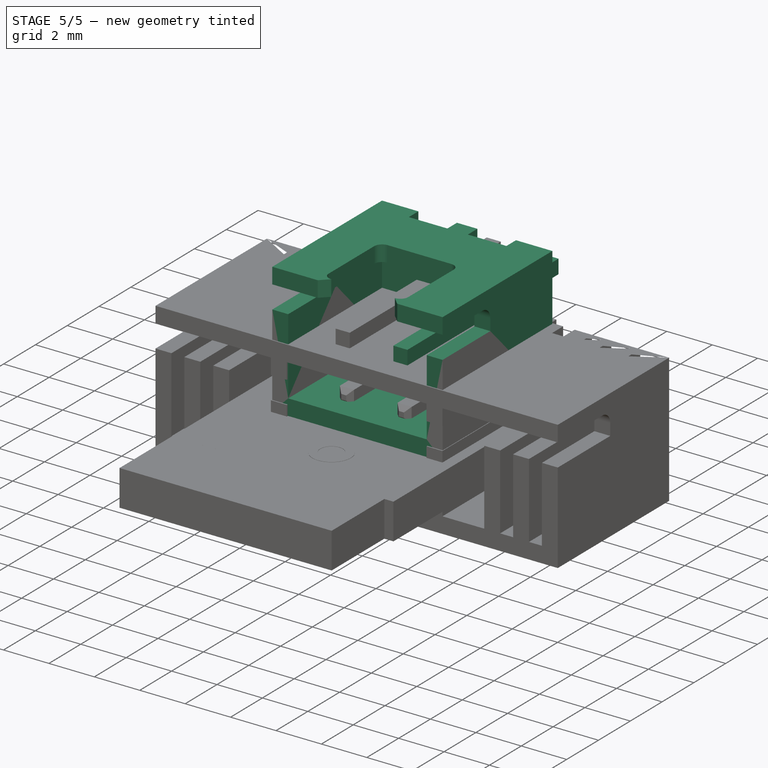
[diagram: stage 5 of 5 — iso view after this stage's code; geometry added in this stage tinted green]
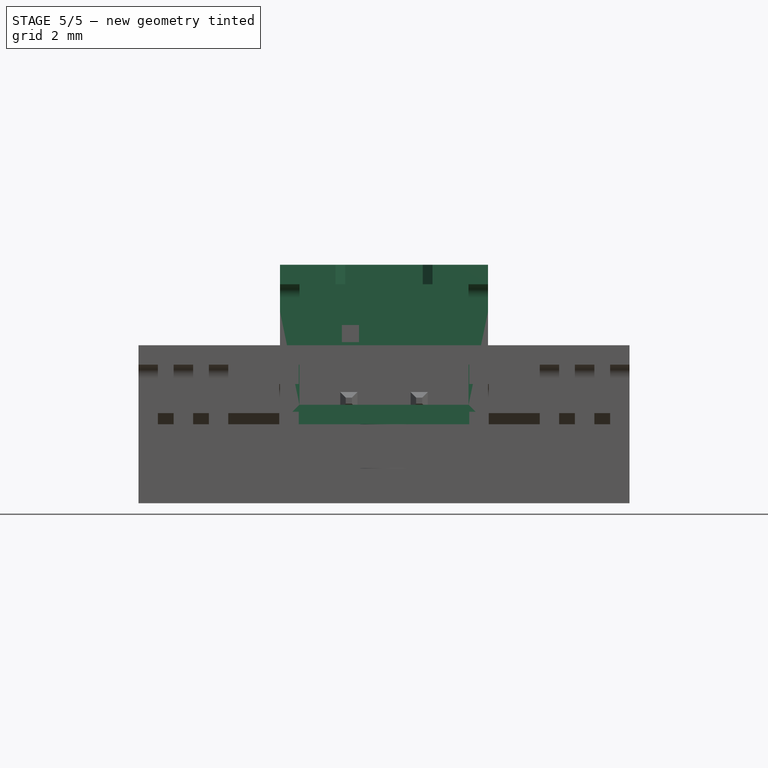
[diagram: stage 5 of 5 — front view after this stage's code; geometry added in this stage tinted green]
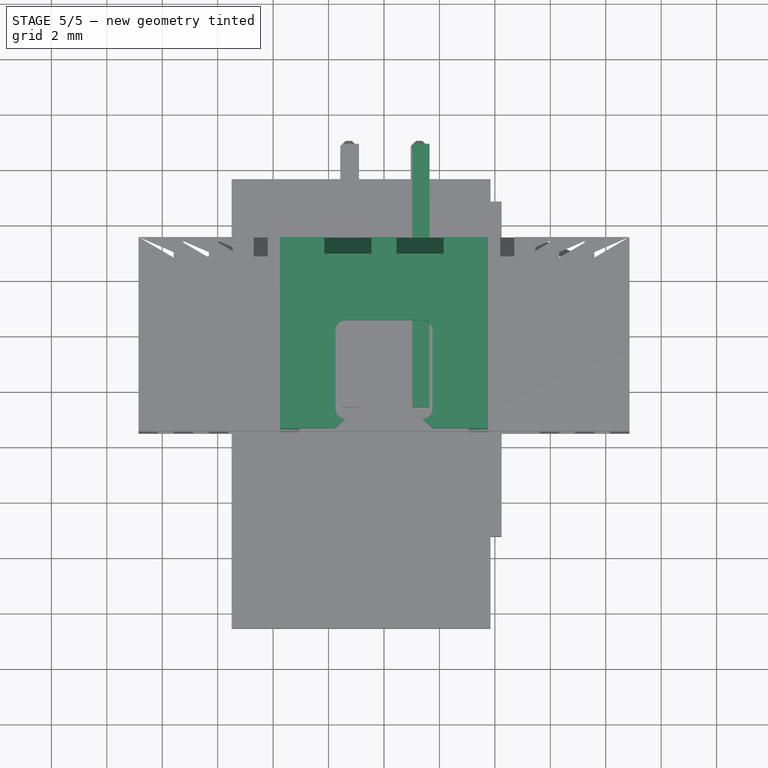
[diagram: stage 5 of 5 — top view after this stage's code; geometry added in this stage tinted green]
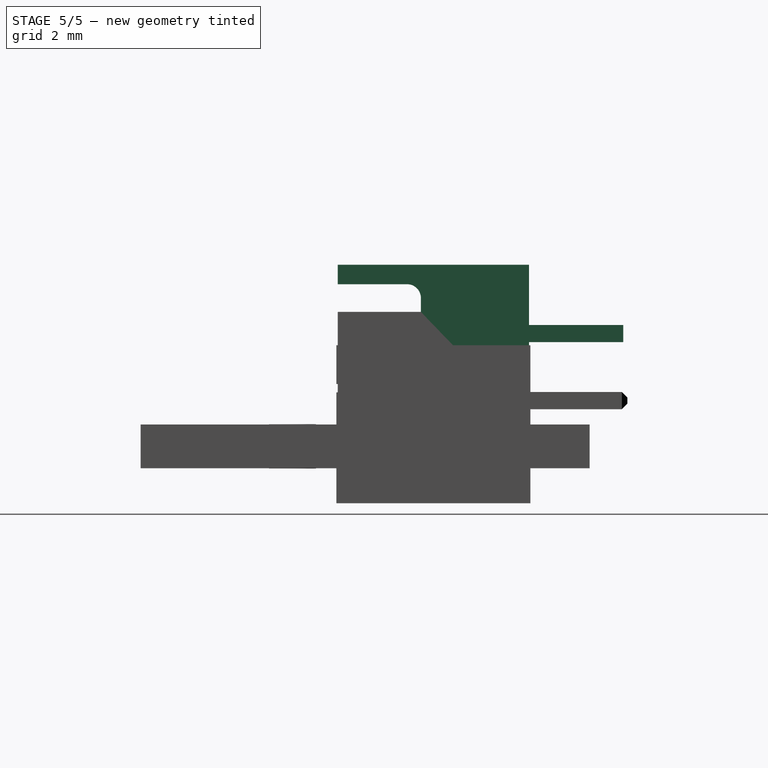
[diagram: stage 5 of 5 — right view after this stage's code; geometry added in this stage tinted green]
FEATURE [PartDesign::Thickness] Thickness  label="CaseSkin"
  Base = -> Pad [Face3]
  BaseFeature = -> Pad
  Join = 1
  Mode = 0
  Reversed = true
  Value = 0.7
FEATURE [Sketcher::SketchObject] Sketch001  label="TopCutout"
  ExternalGeometry = -> [Thickness]
  MapMode = 5
  Placement = pos=(0,0,5.75) rot=(0,0,1;0rad)
  Support = -> [Thickness]
  sketch-geometry (10):
    g0: LineSegment StartX=1.75 StartY=-2.75 StartZ=0 EndX=1.75 EndY=0.1 EndZ=0
    g1: LineSegment StartX=1.4 StartY=0.45 StartZ=0 EndX=-1.4 EndY=0.45 EndZ=0
    g2: LineSegment StartX=-1.75 StartY=0.1 StartZ=0 EndX=-1.75 EndY=-2.75 EndZ=0
    g3: ArcOfCircle CenterX=-1.4 CenterY=0.1 CenterZ=0 NormalX=0 NormalY=0 NormalZ=1 AngleXU=0 Radius=0.35 StartAngle=1.5708 EndAngle=3.14159
    g4: ArcOfCircle CenterX=1.4 CenterY=0.1 CenterZ=0 NormalX=0 NormalY=0 NormalZ=1 AngleXU=0 Radius=0.35 StartAngle=0 EndAngle=1.5708
    g5: ArcOfCircle CenterX=-1.4 CenterY=-2.75 CenterZ=0 NormalX=0 NormalY=0 NormalZ=1 AngleXU=0 Radius=0.35 StartAngle=3.14159 EndAngle=4.71239
    g6: ArcOfCircle CenterX=1.4 CenterY=-2.75 CenterZ=0 NormalX=0 NormalY=0 NormalZ=1 AngleXU=0 Radius=0.35 StartAngle=4.71239 EndAngle=6.28319
    g7: LineSegment StartX=-1.4 StartY=-3.1 StartZ=0 EndX=-1.75 EndY=-3.45 EndZ=0
    g8: LineSegment StartX=1.4 StartY=-3.1 StartZ=0 EndX=1.75 EndY=-3.45 EndZ=0
    g9: LineSegment StartX=-1.75 StartY=-3.45 StartZ=0 EndX=1.75 EndY=-3.45 EndZ=0
  constraints (28):
    c: Tangent(g2,g3) = -1.5708
    c: Tangent(g1,g3) = -1.5708
    c: Tangent(g1,g4) = -1.5708
    c: Tangent(g0,g4) = -1.5708
    c: Parallel(g2,g0)
    c: Parallel(g1,g-3)
    c: DistanceY(g1,g-4) = 3
    c: Radius(g3) = 0.35
    c: Tangent(g2,g5) = -1.5708
    c: Coincident(g7,g5) = -1.5708
    c: Tangent(g0,g6) = -1.5708
    c: Coincident(g8,g6) = -1.5708
    c: Perpendicular(g-3,g2)
    c: DistanceY(g-3,g1) = 3.9
    c: PointOnObject(g7,g-3)
    c: PointOnObject(g8,g-3)
    c: PointOnObject(g7,g2)
    c: PointOnObject(g8,g0)
    c: DistanceX(g2,g0) = 3.5
    c: Symmetric(g2,g0,g-2)
    c: Equal(g5,g3)
    c: DistanceY(g7,g7) = 0.35
    c: Coincident(g9,g8)
    c: Coincident(g9,g7)
    c: DistanceX(g5,g6) = 2.8
    c: Angle(g9,g7) = 0.785398
    c: Angle(g8,g9) = 0.785398
    c: Equal(g6,g3)
FEATURE [PartDesign::Pocket] Pocket  label="TopCutout001"
  BaseFeature = -> Thickness
  Length = 0.9
  Length2 = 100
  Profile = -> Sketch001
  Type = 2
FEATURE [Sketcher::SketchObject] Sketch002  label="Slot"
  ExternalGeometry = -> [Pocket]
  MapMode = 5
  Placement = pos=(-3.75,0,0) rot=(0.57735,-0.57735,-0.57735;2.0944rad)
  Support = -> [Pocket]
  sketch-geometry (5):
    g0: LineSegment StartX=0.95 StartY=5.05 StartZ=0 EndX=3.45 EndY=5.05 EndZ=0
    g1: LineSegment StartX=3.45 StartY=4.05 StartZ=0 EndX=0.45 EndY=4.05 EndZ=0
    g2: LineSegment StartX=3.45 StartY=5.05 StartZ=0 EndX=3.45 EndY=4.05 EndZ=0
    g3: ArcOfCircle CenterX=0.95 CenterY=4.55 CenterZ=0 NormalX=0 NormalY=0 NormalZ=1 AngleXU=0 Radius=0.5 StartAngle=1.5708 EndAngle=3.14159
    g4: LineSegment StartX=0.45 StartY=4.55 StartZ=0 EndX=0.45 EndY=4.05 EndZ=0
  constraints (16):
    c: Horizontal(g0)
    c: Horizontal(g1)
    c: Coincident(g2,g0)
    c: Coincident(g2,g1)
    c: Vertical(g2)
    c: DistanceX(g1,g1) = 3
    c: DistanceY(g1,g0) = 1
    c: DistanceY(g0,g-3) = 0.7
    c: DistanceX(g1,g0) = 0.5
    c: Coincident(g3,g0)
    c: Vertical(g3,g1)
    c: PointOnObject(g0,g-3)
    c: Radius(g3) = 0.5
    c: DistanceY(g1,g3) = 0.5
    c: Coincident(g4,g1)
    c: Coincident(g4,g3)
FEATURE [PartDesign::Pocket] Pocket001  label="Slot001"
  BaseFeature = -> Pocket
  Length = 5
  Length2 = 100
  Profile = -> Sketch002
  Type = 1
FEATURE [Sketcher::SketchObject] Sketch005  label="BackWallCutouts"
  ExternalGeometry = -> [Pad]
  MapMode = 5
  Placement = pos=(0,0,7) rot=(0,0,1;0rad)
  sketch-geometry (8):
    g0: LineSegment StartX=-2.15 StartY=3.45 StartZ=0 EndX=-0.45 EndY=3.45 EndZ=0
    g1: LineSegment StartX=-0.45 StartY=3.45 StartZ=0 EndX=-0.45 EndY=2.85 EndZ=0
    g2: LineSegment StartX=-0.45 StartY=2.85 StartZ=0 EndX=-2.15 EndY=2.85 EndZ=0
    g3: LineSegment StartX=-2.15 StartY=2.85 StartZ=0 EndX=-2.15 EndY=3.45 EndZ=0
    g4: LineSegment StartX=0.45 StartY=3.45 StartZ=0 EndX=2.15 EndY=3.45 EndZ=0
    g5: LineSegment StartX=2.15 StartY=3.45 StartZ=0 EndX=2.15 EndY=2.85 EndZ=0
    g6: LineSegment StartX=2.15 StartY=2.85 StartZ=0 EndX=0.45 EndY=2.85 EndZ=0
    g7: LineSegment StartX=0.45 StartY=2.85 StartZ=0 EndX=0.45 EndY=3.45 EndZ=0
  constraints (23):
    c: Coincident(g0,g1)
    c: Coincident(g1,g2)
    c: Coincident(g2,g3)
    c: Coincident(g3,g0)
    c: Horizontal(g0)
    c: Horizontal(g2)
    c: Vertical(g1)
    c: Vertical(g3)
    c: DistanceX(g0,g0) = 1.7
    c: DistanceY(g1,g1) = 0.6
    c: Coincident(g4,g5)
    c: Coincident(g5,g6)
    c: Coincident(g6,g7)
    c: Coincident(g7,g4)
    c: Horizontal(g4)
    c: Horizontal(g6)
    c: Vertical(g5)
    c: Vertical(g7)
    c: Equal(g4,g0)
    c: Equal(g7,g3)
    c: Symmetric(g4,g0,g-2)
    c: PointOnObject(g0,g-3)
    c: DistanceX(g4,g-3) = 1.6
FEATURE [Sketcher::SketchObject] Sketch008  label="BackWallStrengthener"
  ExternalGeometry = -> [Pocket]
  MapMode = 5
  Placement = pos=(3.05,0,0) rot=(0.57735,-0.57735,-0.57735;2.0944rad)
  sketch-geometry (4):
    g0: LineSegment StartX=-2.75 StartY=5.05 StartZ=0 EndX=-2.45 EndY=5.05 EndZ=0
    g1: LineSegment StartX=-2.45 StartY=2.47321 StartZ=0 EndX=-2.75 EndY=2.3 EndZ=0
    g2: LineSegment StartX=-2.45 StartY=5.05 StartZ=0 EndX=-2.45 EndY=2.47321 EndZ=0
    g3: LineSegment StartX=-2.75 StartY=5.05 StartZ=0 EndX=-2.75 EndY=2.3 EndZ=0
  constraints (11):
    c: Coincident(g2,g0)
    c: Coincident(g2,g1)
    c: Coincident(g3,g0)
    c: Coincident(g3,g1)
    c: DistanceX(g0,g0) = 0.3
    c: Angle(g1,g3) = 1.0472
    c: Coincident(g0,g-3)
    c: PointOnObject(g0,g-3)
    c: DistanceY(g-4,g1) = 1.6
    c: Vertical(g2)
    c: Vertical(g3)
FEATURE [PartDesign::Pad] Pad004  label="BackWallStrengthener001"
  BaseFeature = -> Pocket001
  Length = 10
  Length2 = 100
  Profile = -> Sketch008
  Type = 2
FEATURE [PartDesign::Pocket] Pocket002  label="BackWallCutouts001"
  BaseFeature = -> Pad004
  Length = 5
  Length2 = 100
  Profile = -> Sketch005
  Type = 1
FEATURE [PartDesign::ShapeBinder] ShapeBinder  label="BackWallCutoutInnerVerticalFace"
  Support = -> [Pocket002]
  TraceSupport = false
FEATURE [Sketcher::SketchObject] Sketch009  label="BackWallWedges"
  ExternalGeometry = -> [ShapeBinder]
  MapMode = 5
  Placement = pos=(2.15,0,0) rot=(0.57735,-0.57735,-0.57735;2.0944rad)
  Support = -> [ShapeBinder]
  sketch-geometry (4):
    g0: LineSegment StartX=-2.85 StartY=5.75 StartZ=0 EndX=-3.45 EndY=4.4 EndZ=0
    g1: LineSegment StartX=-3.45 StartY=4.4 StartZ=0 EndX=-3.45 EndY=2.5 EndZ=0
    g2: LineSegment StartX=-3.45 StartY=2.5 StartZ=0 EndX=-2.85 EndY=0 EndZ=0
    g3: LineSegment StartX=-2.85 StartY=0 StartZ=0 EndX=-2.85 EndY=5.75 EndZ=0
  constraints (11):
    c: PointOnObject(g0,g-3)
    c: Coincident(g0,g1)
    c: PointOnObject(g1,g-3)
    c: Coincident(g1,g2)
    c: Coincident(g2,g-4)
    c: Coincident(g2,g3)
    c: Coincident(g3,g-4)
    c: Coincident(g0,g3)
    c: DistanceY(g1,g0) = 1.9
    c: DistanceY(g-3,g1) = 2.5
    c: DistanceY(g0,g-3) = 1.35
FEATURE [PartDesign::Pad] Pad005  label="BackWallWedges001"
  BaseFeature = -> Pocket002
  Length = 10
  Length2 = 100
  Profile = -> Sketch009
  Type = 1
FEATURE [PartDesign::Body] Body001  label="Pin"
  Group = -> [ShapeBinder001,Sketch010,Pad006,DatumPlane]
  Origin = -> Origin001
  Tip = -> Pad006
FEATURE [Part::FeaturePython] Array  label="PinsArray"  # Draft array (typed FeaturePython)
  Angle = 360
  ArrayType = 0
  Axis = (0,0,1)
  Base = -> Pad006
  Center = (0,0,0)
  Fuse = false
  IntervalAxis = (0,0,0)
  IntervalX = (2.54,0,0)
  IntervalY = (0,1,0)
  IntervalZ = (0,0,1)
  NumberPolar = 1
  NumberX = 2
  NumberY = 1
  NumberZ = 1
FEATURE [Part::Compound] Compound
  Links = -> [Array,Body]
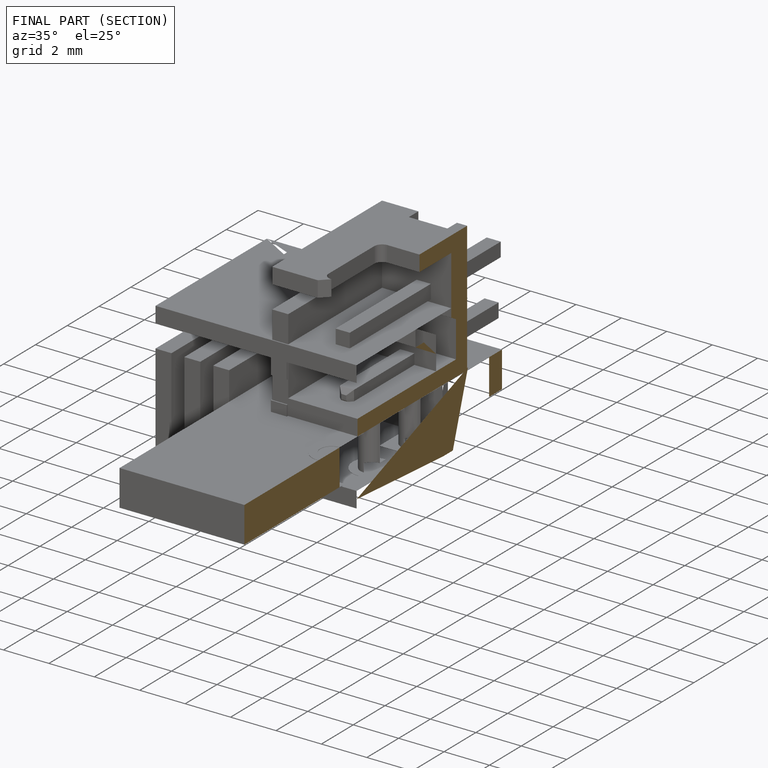
[diagram: finished part — half-section view (interior)]
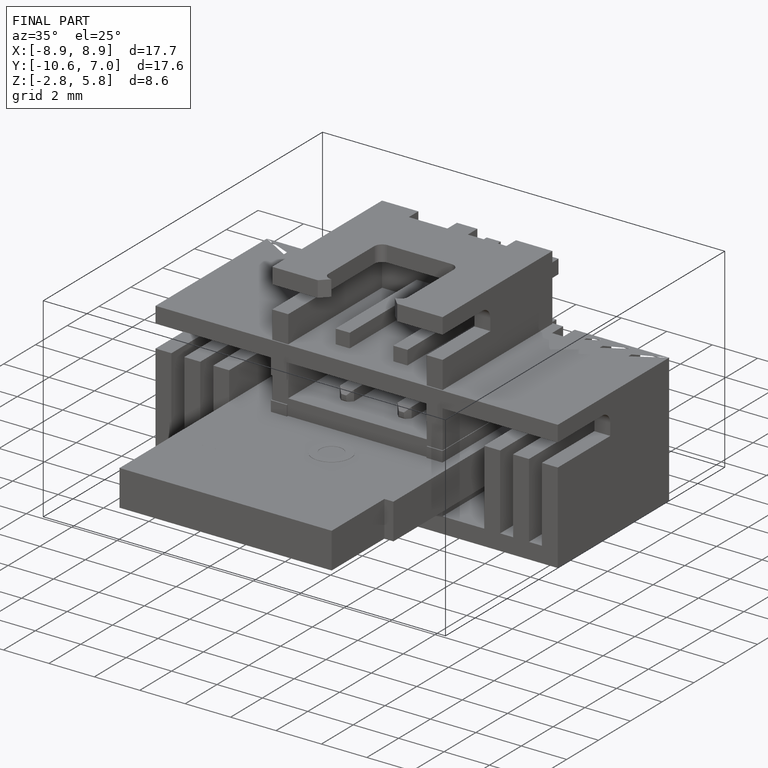
[diagram: finished part — iso view with bounding-box wireframe]
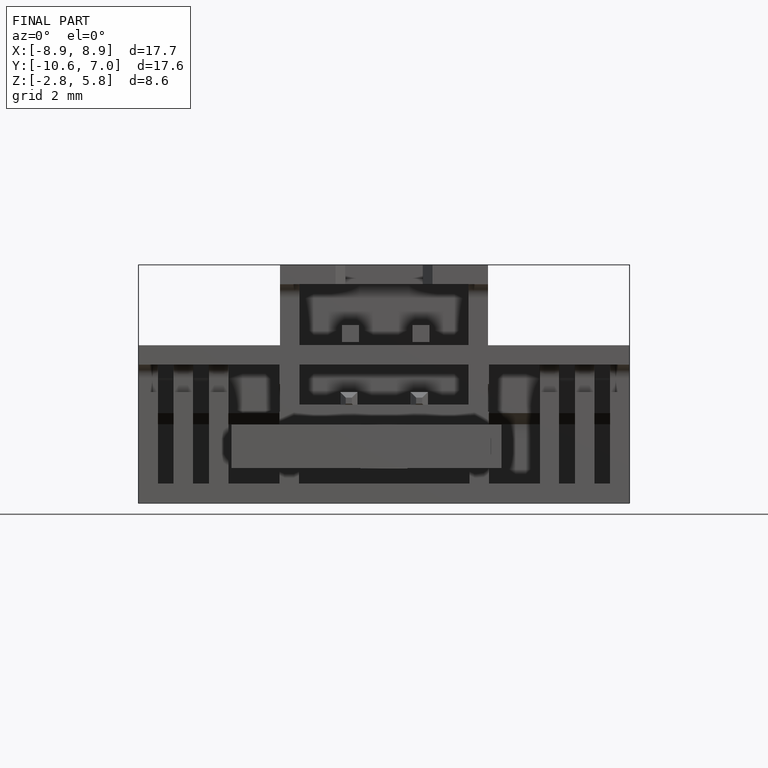
[diagram: finished part — front view with bounding-box wireframe]
